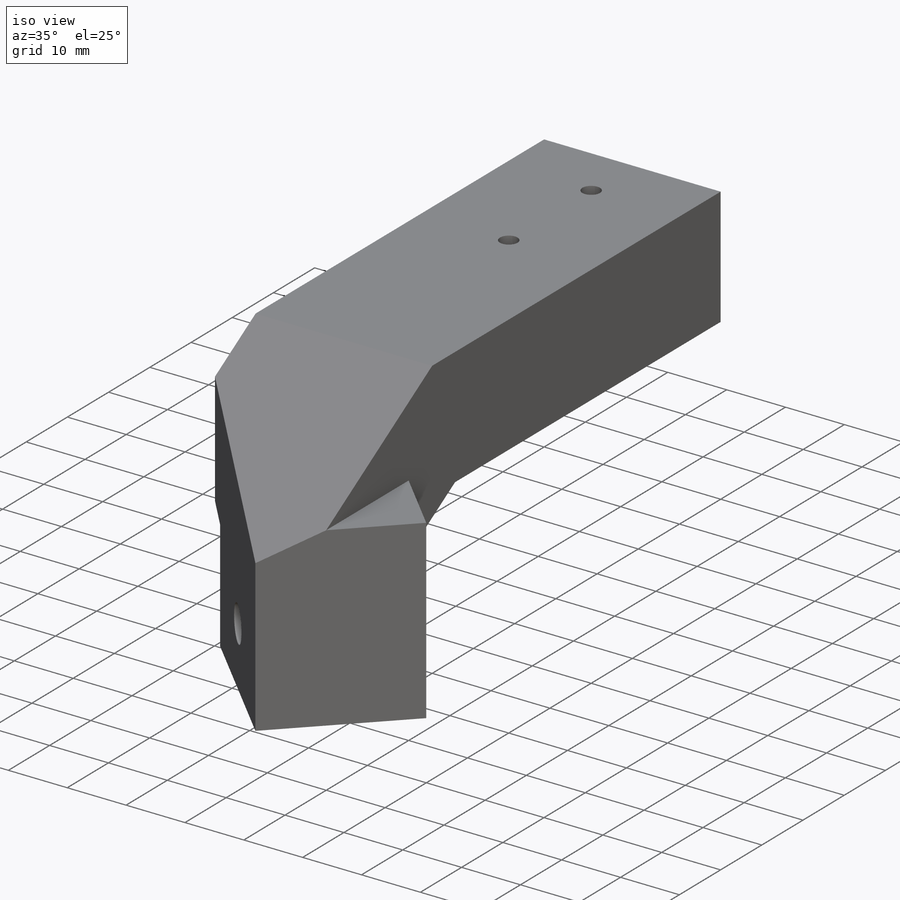
[diagram: iso view]
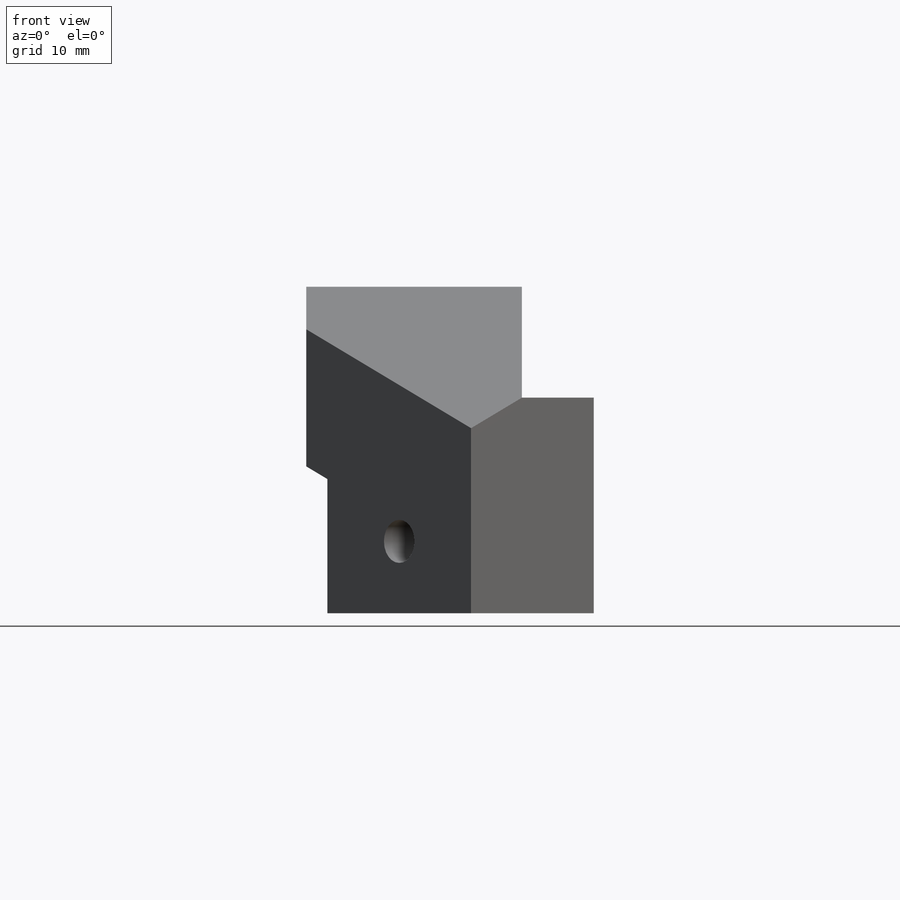
[diagram: front view]
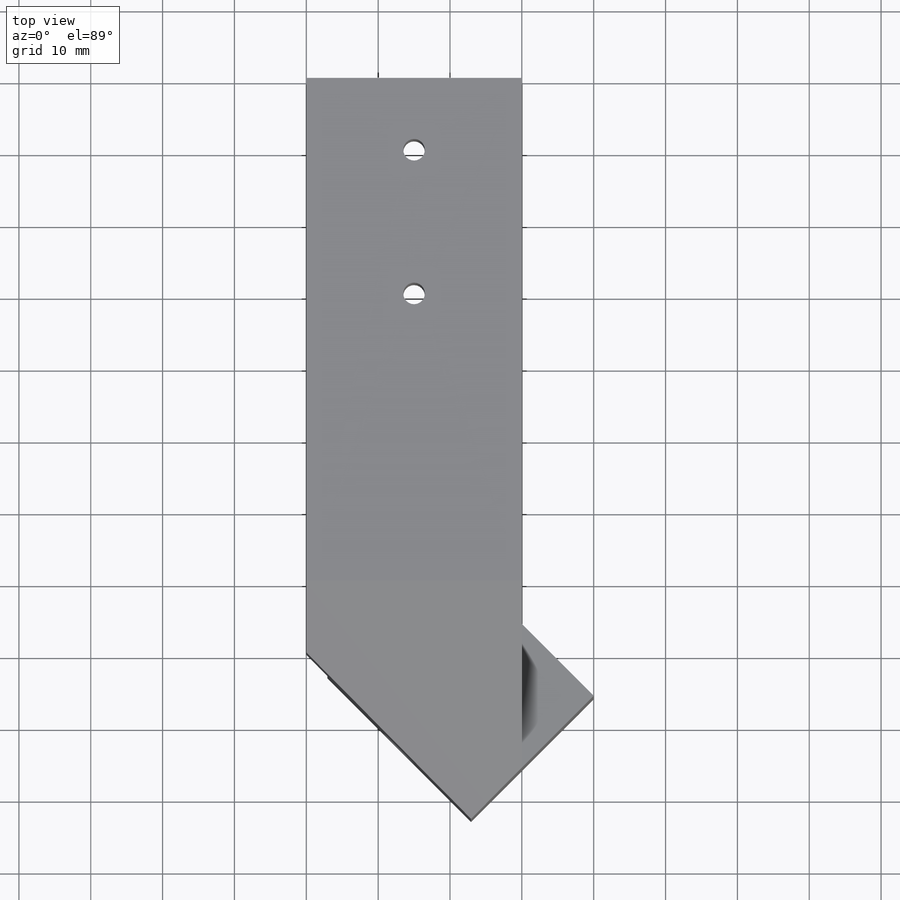
[diagram: top view]
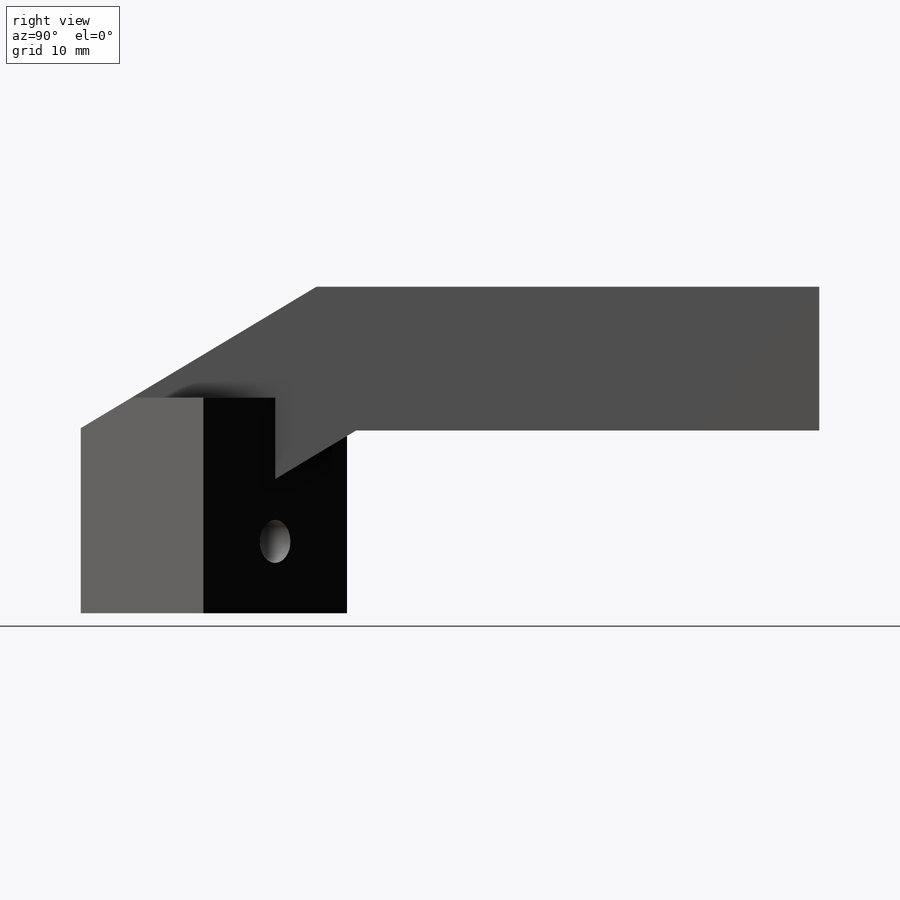
[diagram: right view]
SOLIDWORKS PART (.sldprt)
format: sldprt  version: not decoded by parser v0  size: 245,248 bytes
history: native  units: mm
features: sketch x10, cut_extrude x6, plane x5, extrude x4, material x1, move_body x1 (+10 scaffold rows collapsed; 1 parser-record rows omitted)
feature tree (38):
  scaffold x10  (default folders/planes/origin — collapsed)
  material  "Material <sin especificar>"
  plane  "Alzado"
  plane  "Planta"
  plane  "Vista lateral"
  sketch  "Croquis2"  dims[D1=50.0mm D2=30.0mm D3=30.0mm D5=20.0mm D4=20.0mm]
  extrude  "Saliente-Extruir2"  Depth=30mm
  plane  "Plano1"
  sketch  "Croquis3"  dims[D1=~38.501895mm D2=~60.62942mm]
  cut_extrude  "Cortar-Extruir1"  Depth=30mm
  sketch  "Croquis4"  dims[D1=6.0mm]
  cut_extrude  "Cortar-Extruir2"  [1 undecoded]
  sketch  "Croquis5"  dims[D1=~18.676192mm D2=~28.284271mm]
  extrude  "Saliente-Extruir3"  [1 undecoded]
  sketch  "Croquis6"  dims[D1=0.0mm]
  extrude  "Saliente-Extruir4"  Depth=10mm
  sketch  "Croquis7"  dims[D1=~30.206172mm D2=~23.581736mm]
  cut_extrude  "Cortar-Extruir3"  Depth=60mm
  sketch  "Croquis8"  dims[c1.D1=~4.82128mm c1.D2=6.0mm c2.D1=10.0mm]
  cut_extrude  "Cortar-Extruir4"  [1 undecoded]
  plane  "Plano2"
  sketch  "Croquis10"  dims[c1.D1=~23.408364mm c1.D2=~72.436905mm c2.D1=~56.401255mm c2.D2=~79.072347mm]
  cut_extrude  "Cortar-Extruir5"  Depth=50mm
  sketch  "Croquis12"  dims[D1=0.0mm]
  extrude  "Saliente-Extruir6"  Depth=20mm
  sketch  "Croquis13"  dims[c1.D1=3.0mm c1.D2=3.0mm c2.D1=~5.266331mm c2.D3=10.0mm c2.D4=30.0mm]
  cut_extrude  "Cortar-Extruir6"  Depth=20mm
  parser-record x1  (decoder bookkeeping rows leaked as tree rows — omitted from the tree; the rows remain in map.json)
  move_body  "Sólido-Mover/Copiar1"
decode coverage: 17 of 21 modeling features carry decoded parameters
note: ~ marks probable driven/reference dimensions
note: 3 parameter values undecoded
summary: no parameter record found for 3 features
note: suppression state not decoded; provenance and decode notes live in map.json
